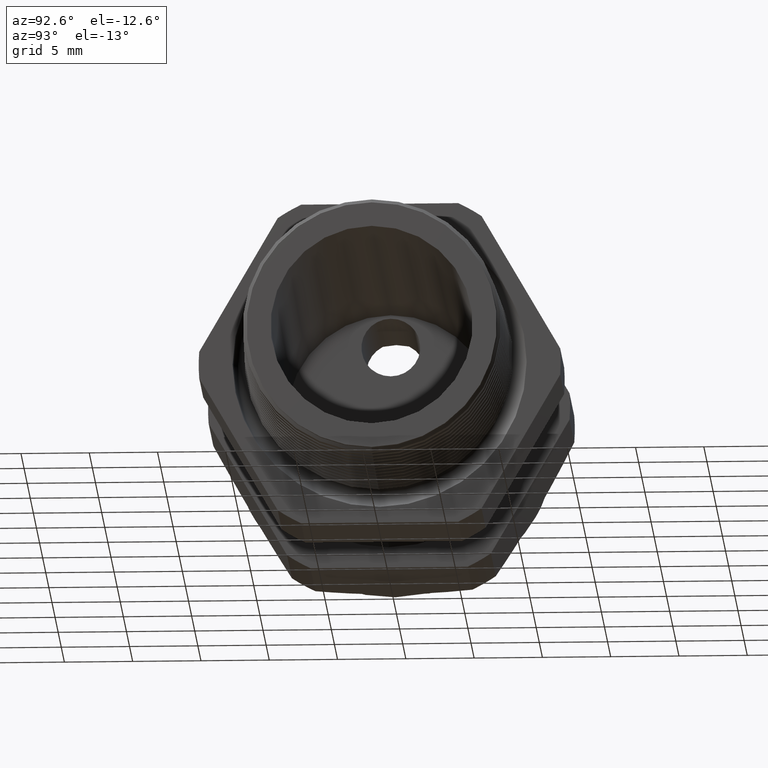
[diagram: clean part render]
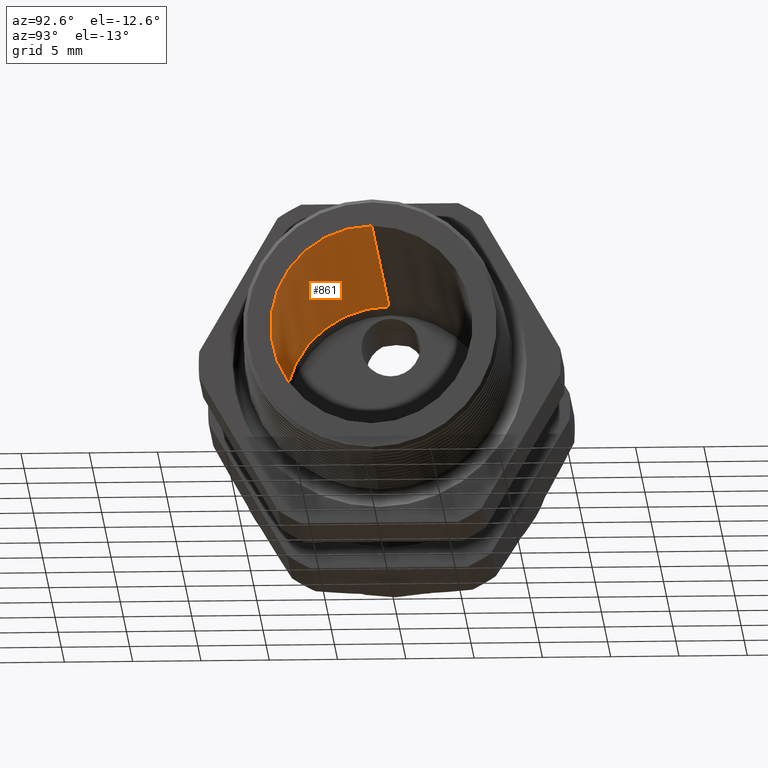
[diagram: same view with one face highlighted and labeled with its STEP entity id]
A machine part, auxiliary view. The second image highlights one B-rep face of the part: STEP entity #861.
In plain terms, the highlighted conical surface has half-angle 0.446 deg.
Its self-contained STEP definition (entity closure, byte-faithful):
#861 = ADVANCED_FACE ( 'NONE', ( #3201 ), #3199, .F. ) ;
#862 = EDGE_LOOP ( 'NONE', ( #863, #867, #869, #924 ) ) ;
#863 = ORIENTED_EDGE ( 'NONE', *, *, #864, .T. ) ;
#864 = EDGE_CURVE ( 'NONE', #865, #866, #3194, .T. ) ;
#865 = VERTEX_POINT ( 'NONE', #3190 ) ;
#866 = VERTEX_POINT ( 'NONE', #3189 ) ;
#867 = ORIENTED_EDGE ( 'NONE', *, *, #868, .T. ) ;
#868 = EDGE_CURVE ( 'NONE', #866, #939, #3188, .T. ) ;
#869 = ORIENTED_EDGE ( 'NONE', *, *, #938, .F. ) ;
#885 = VERTEX_POINT ( 'NONE', #3215 ) ;
#924 = ORIENTED_EDGE ( 'NONE', *, *, #925, .F. ) ;
#925 = EDGE_CURVE ( 'NONE', #865, #885, #3276, .T. ) ;
#938 = EDGE_CURVE ( 'NONE', #885, #939, #3312, .T. ) ;
#939 = VERTEX_POINT ( 'NONE', #3308 ) ;
#3185 = DIRECTION ( 'NONE',  ( -0.9999697209564802900, 9.530016182899079500E-019, -0.007781848766137508500 ) ) ;
#3186 = VECTOR ( 'NONE', #3185, 39.37007874015748100 ) ;
#3187 = CARTESIAN_POINT ( 'NONE',  ( -0.9054330708661418900, 3.673940397442058900E-017, -0.2999999999999999900 ) ) ;
#3188 = LINE ( 'NONE', #3187, #3186 ) ;
#3189 = CARTESIAN_POINT ( 'NONE',  ( 0.2000000000000000400, 3.621264827203845100E-017, -0.2913974265437366300 ) ) ;
#3190 = CARTESIAN_POINT ( 'NONE',  ( 0.2000000000000000400, 0.0000000000000000000, 0.2913974265437366300 ) ) ;
#3191 = DIRECTION ( 'NONE',  ( 0.0000000000000000000, 0.0000000000000000000, -1.000000000000000000 ) ) ;
#3192 = DIRECTION ( 'NONE',  ( 1.000000000000000000, 0.0000000000000000000, 0.0000000000000000000 ) ) ;
#3193 = AXIS2_PLACEMENT_3D ( 'NONE', #3200, #3192, #3191 ) ;
#3194 = CIRCLE ( 'NONE', #3193, 0.2913974265437366300 ) ;
#3195 = DIRECTION ( 'NONE',  ( 0.0000000000000000000, 0.0000000000000000000, 1.000000000000000000 ) ) ;
#3196 = DIRECTION ( 'NONE',  ( -1.000000000000000000, 0.0000000000000000000, 0.0000000000000000000 ) ) ;
#3197 = CARTESIAN_POINT ( 'NONE',  ( -0.9054330708661418900, 0.0000000000000000000, 0.0000000000000000000 ) ) ;
#3198 = AXIS2_PLACEMENT_3D ( 'NONE', #3197, #3196, #3195 ) ;
#3199 = CONICAL_SURFACE ( 'NONE', #3198, 0.2999999999999999900, 0.007781927309401279900 ) ;
#3200 = CARTESIAN_POINT ( 'NONE',  ( 0.2000000000000000400, 0.0000000000000000000, 0.0000000000000000000 ) ) ;
#3201 = FACE_OUTER_BOUND ( 'NONE', #862, .T. ) ;
#3215 = CARTESIAN_POINT ( 'NONE',  ( -0.9054330708661418900, 0.0000000000000000000, 0.2999999999999999900 ) ) ;
#3275 = CARTESIAN_POINT ( 'NONE',  ( -0.9054330708661418900, 0.0000000000000000000, 0.2999999999999999900 ) ) ;
#3276 = LINE ( 'NONE', #3275, #3335 ) ;
#3308 = CARTESIAN_POINT ( 'NONE',  ( -0.9054330708661418900, 3.673940397442058900E-017, -0.2999999999999999900 ) ) ;
#3309 = DIRECTION ( 'NONE',  ( 0.0000000000000000000, 0.0000000000000000000, -1.000000000000000000 ) ) ;
#3310 = DIRECTION ( 'NONE',  ( 1.000000000000000000, 0.0000000000000000000, 0.0000000000000000000 ) ) ;
#3311 = AXIS2_PLACEMENT_3D ( 'NONE', #3318, #3310, #3309 ) ;
#3312 = CIRCLE ( 'NONE', #3311, 0.2999999999999999900 ) ;
#3318 = CARTESIAN_POINT ( 'NONE',  ( -0.9054330708661418900, 0.0000000000000000000, 0.0000000000000000000 ) ) ;
#3334 = DIRECTION ( 'NONE',  ( -0.9999697209564802900, 0.0000000000000000000, 0.007781848766137508500 ) ) ;
#3335 = VECTOR ( 'NONE', #3334, 39.37007874015748100 ) ;